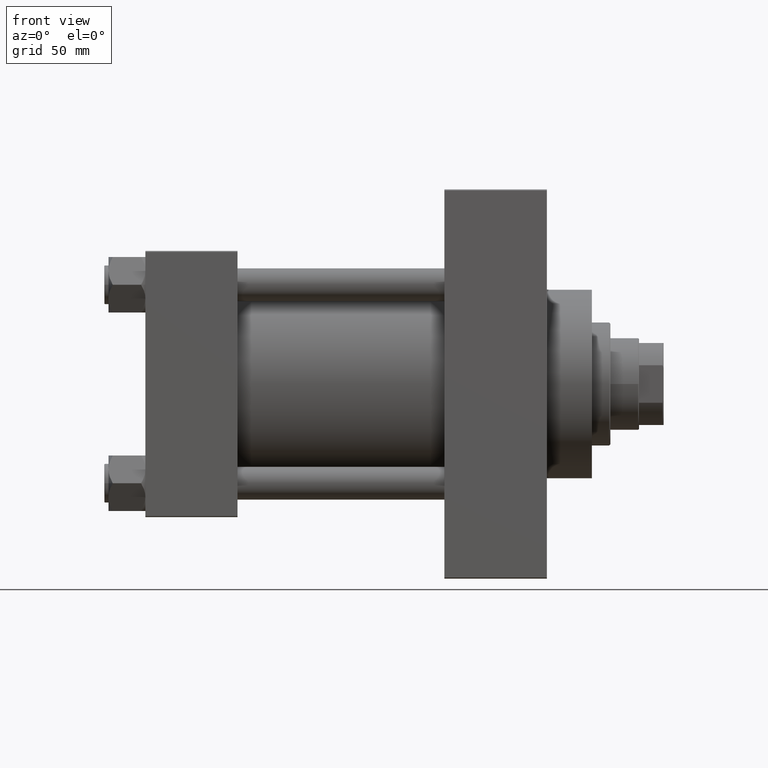
[diagram: clean part render]
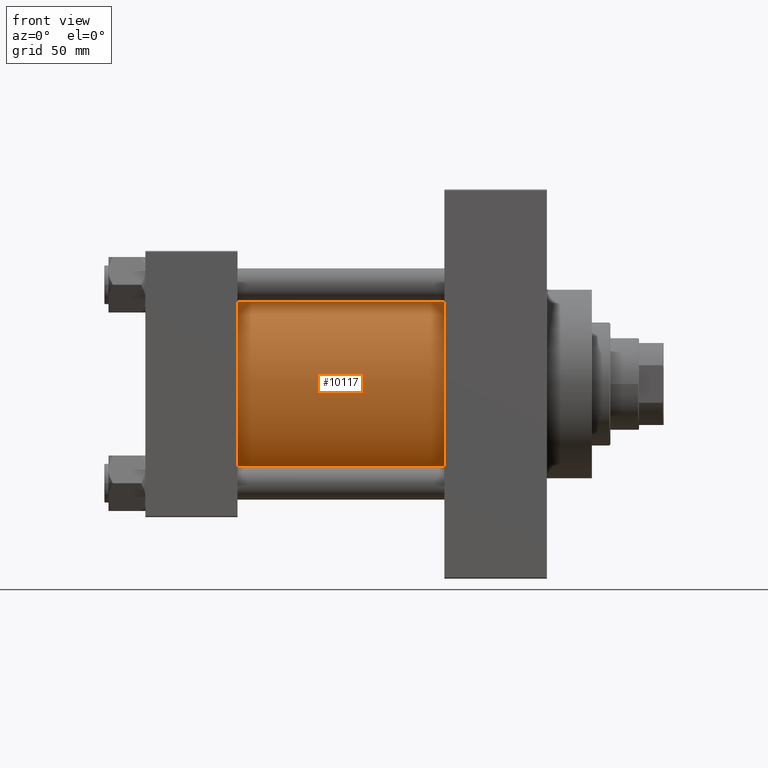
[diagram: same view with one face highlighted and labeled with its STEP entity id]
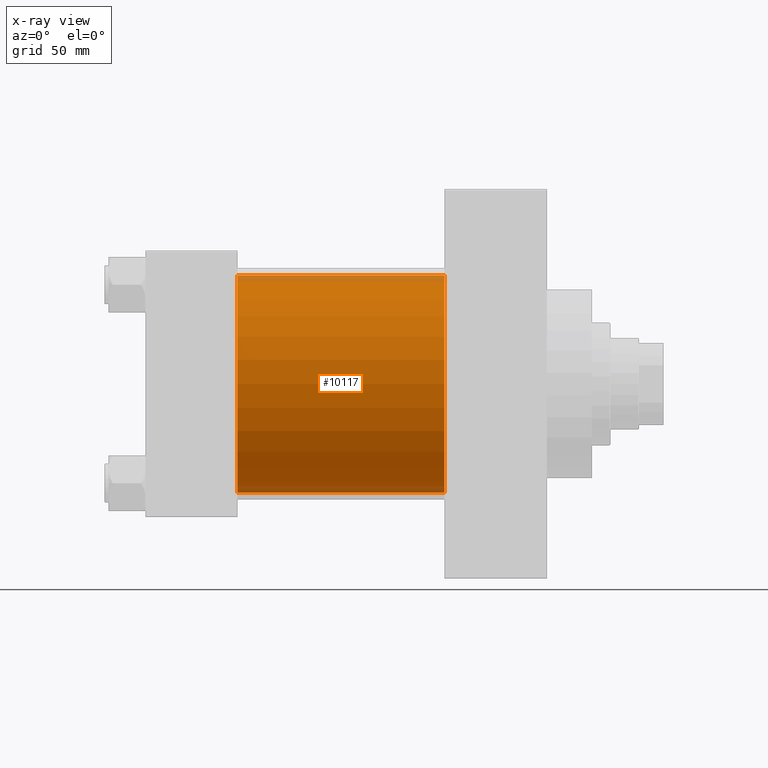
[diagram: x-ray of the same camera — body ghosted, the highlighted face saturated]
A machine part, front view. The second image highlights one B-rep face of the part: STEP entity #10117.
The next image is the same camera in x-ray: the body ghosted, the highlighted face saturated — about 6% of this face is hidden behind the body in this view.
In plain terms, the highlighted cylindrical surface (partial cylindrical patch) has radius 53 mm, axis along (-1, -0, -0).
Its self-contained STEP definition (entity closure, byte-faithful):
#2018 = DIRECTION ( 'NONE',  ( 1.000000000000000000, 0.000000000000000000, 0.000000000000000000 ) ) ;
#4535 = FACE_OUTER_BOUND ( 'NONE', #47339, .T. ) ;
#4749 = DIRECTION ( 'NONE',  ( -1.000000000000000000, -0.000000000000000000, -0.000000000000000000 ) ) ;
#5246 = AXIS2_PLACEMENT_3D ( 'NONE', #16105, #20658, #31045 ) ;
#8309 = CIRCLE ( 'NONE', #5246, 53.00000000000000711 ) ;
#8328 = AXIS2_PLACEMENT_3D ( 'NONE', #8401, #26715, #33476 ) ;
#8372 = CARTESIAN_POINT ( 'NONE',  ( 146.0000000000000284, 3.888542821515762466E-15, -53.00000000000000711 ) ) ;
#8401 = CARTESIAN_POINT ( 'NONE',  ( 146.0000000000000284, -2.602085213965210642E-15, 0.000000000000000000 ) ) ;
#9661 = LINE ( 'NONE', #27989, #21894 ) ;
#10117 = ADVANCED_FACE ( 'NONE', ( #4535 ), #41435, .T. ) ;
#10659 = CIRCLE ( 'NONE', #32241, 53.00000000000000711 ) ;
#11919 = VERTEX_POINT ( 'NONE', #12256 ) ;
#12256 = CARTESIAN_POINT ( 'NONE',  ( 146.0000000000000284, 3.888542821515762466E-15, -53.00000000000000711 ) ) ;
#14698 = ORIENTED_EDGE ( 'NONE', *, *, #36554, .F. ) ;
#15124 = CARTESIAN_POINT ( 'NONE',  ( 45.00000000000000000, -2.602085213965210642E-15, 53.00000000000000711 ) ) ;
#16105 = CARTESIAN_POINT ( 'NONE',  ( 45.00000000000000000, -2.602085213965210642E-15, 0.000000000000000000 ) ) ;
#20658 = DIRECTION ( 'NONE',  ( 1.000000000000000000, -0.000000000000000000, 0.000000000000000000 ) ) ;
#20739 = VERTEX_POINT ( 'NONE', #37123 ) ;
#20780 = VERTEX_POINT ( 'NONE', #37359 ) ;
#21894 = VECTOR ( 'NONE', #27765, 1000.000000000000000 ) ;
#21938 = ORIENTED_EDGE ( 'NONE', *, *, #22421, .T. ) ;
#22421 = EDGE_CURVE ( 'NONE', #20739, #36462, #9661, .T. ) ;
#23000 = VECTOR ( 'NONE', #4749, 1000.000000000000000 ) ;
#23898 = ORIENTED_EDGE ( 'NONE', *, *, #37033, .F. ) ;
#23975 = DIRECTION ( 'NONE',  ( 0.000000000000000000, 0.000000000000000000, -1.000000000000000000 ) ) ;
#26715 = DIRECTION ( 'NONE',  ( -1.000000000000000000, -0.000000000000000000, -0.000000000000000000 ) ) ;
#27400 = LINE ( 'NONE', #8372, #23000 ) ;
#27765 = DIRECTION ( 'NONE',  ( -1.000000000000000000, -0.000000000000000000, -0.000000000000000000 ) ) ;
#27989 = CARTESIAN_POINT ( 'NONE',  ( 146.0000000000000284, -2.602085213965210642E-15, 53.00000000000000711 ) ) ;
#31045 = DIRECTION ( 'NONE',  ( 0.000000000000000000, 0.000000000000000000, 1.000000000000000000 ) ) ;
#32241 = AXIS2_PLACEMENT_3D ( 'NONE', #38917, #2018, #23975 ) ;
#33476 = DIRECTION ( 'NONE',  ( 0.000000000000000000, 0.000000000000000000, 1.000000000000000000 ) ) ;
#34843 = EDGE_CURVE ( 'NONE', #36462, #20780, #8309, .T. ) ;
#36462 = VERTEX_POINT ( 'NONE', #15124 ) ;
#36554 = EDGE_CURVE ( 'NONE', #11919, #20780, #27400, .T. ) ;
#37033 = EDGE_CURVE ( 'NONE', #20739, #11919, #10659, .T. ) ;
#37123 = CARTESIAN_POINT ( 'NONE',  ( 146.0000000000000284, -2.602085213965210642E-15, 53.00000000000000711 ) ) ;
#37359 = CARTESIAN_POINT ( 'NONE',  ( 45.00000000000000000, 3.888542821515762466E-15, -53.00000000000000711 ) ) ;
#38917 = CARTESIAN_POINT ( 'NONE',  ( 146.0000000000000284, -2.602085213965210642E-15, 0.000000000000000000 ) ) ;
#41435 = CYLINDRICAL_SURFACE ( 'NONE', #8328, 53.00000000000000711 ) ;
#47339 = EDGE_LOOP ( 'NONE', ( #14698, #23898, #21938, #47694 ) ) ;
#47694 = ORIENTED_EDGE ( 'NONE', *, *, #34843, .T. ) ;